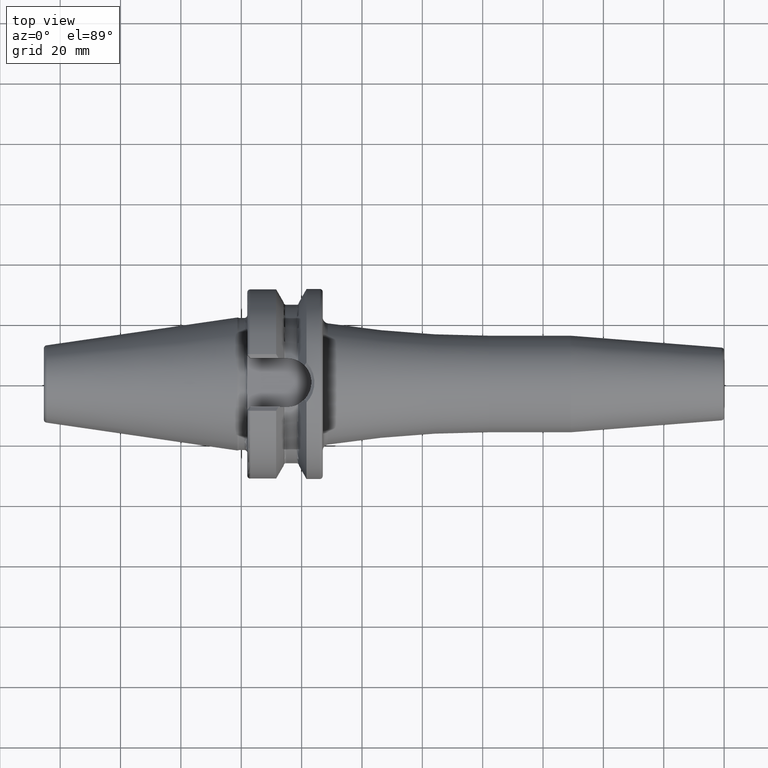
[diagram: clean part render]
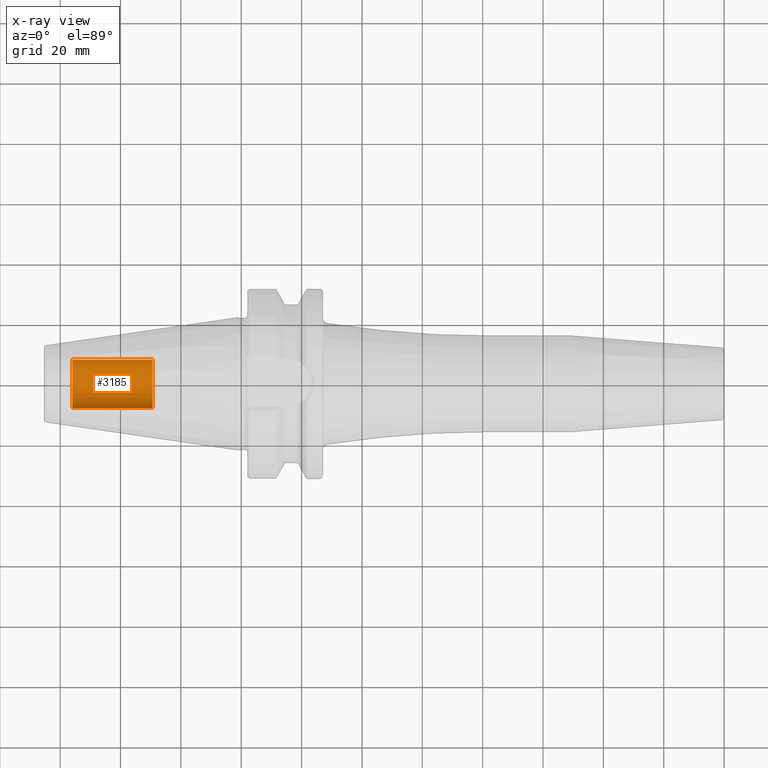
[diagram: x-ray — body ghosted, one internal face saturated and labeled with its STEP entity id]
A machine part, top view, then the same camera in x-ray: the body is ghosted and one INTERNAL B-rep face — a face not visible from any outside direction — is saturated and labeled: STEP entity #3185.
In plain terms, the highlighted cylindrical surface (edge-blend (fillet) strip) has radius 8.0028 mm, axis along (1, 0, 0).
Its self-contained STEP definition (entity closure, byte-faithful):
#3120=CARTESIAN_POINT('',(-5.595E1,0.E0,0.E0));
#3121=DIRECTION('',(-1.E0,0.E0,0.E0));
#3122=DIRECTION('',(0.E0,1.E0,0.E0));
#3123=AXIS2_PLACEMENT_3D('',#3120,#3121,#3122);
#3125=DIRECTION('',(1.E0,0.E0,0.E0));
#3126=VECTOR('',#3125,2.655E1);
#3127=CARTESIAN_POINT('',(-5.595E1,-8.00275E0,0.E0));
#3128=LINE('',#3127,#3126);
#3134=DIRECTION('',(1.E0,0.E0,0.E0));
#3135=VECTOR('',#3134,2.655E1);
#3136=CARTESIAN_POINT('',(-5.595E1,8.00275E0,0.E0));
#3137=LINE('',#3136,#3135);
#3143=CARTESIAN_POINT('',(-2.94E1,0.E0,0.E0));
#3144=DIRECTION('',(1.E0,0.E0,0.E0));
#3145=DIRECTION('',(0.E0,-1.E0,0.E0));
#3146=AXIS2_PLACEMENT_3D('',#3143,#3144,#3145);
#3158=CARTESIAN_POINT('',(-5.595E1,8.00275E0,0.E0));
#3159=CARTESIAN_POINT('',(-5.595E1,-8.00275E0,0.E0));
#3160=VERTEX_POINT('',#3158);
#3161=VERTEX_POINT('',#3159);
#3162=CARTESIAN_POINT('',(-2.94E1,8.00275E0,0.E0));
#3163=CARTESIAN_POINT('',(-2.94E1,-8.00275E0,0.E0));
#3164=VERTEX_POINT('',#3162);
#3165=VERTEX_POINT('',#3163);
#3170=CARTESIAN_POINT('',(-5.595E1,0.E0,0.E0));
#3171=DIRECTION('',(1.E0,0.E0,0.E0));
#3172=DIRECTION('',(0.E0,1.E0,0.E0));
#3173=AXIS2_PLACEMENT_3D('',#3170,#3171,#3172);
#3174=CYLINDRICAL_SURFACE('',#3173,8.00275E0);
#3176=ORIENTED_EDGE('',*,*,#3175,.T.);
#3178=ORIENTED_EDGE('',*,*,#3177,.T.);
#3180=ORIENTED_EDGE('',*,*,#3179,.T.);
#3182=ORIENTED_EDGE('',*,*,#3181,.F.);
#3183=EDGE_LOOP('',(#3176,#3178,#3180,#3182));
#3184=FACE_OUTER_BOUND('',#3183,.F.);
#3185=ADVANCED_FACE('',(#3184),#3174,.T.);
#3124=CIRCLE('',#3123,8.00275E0);
#3147=CIRCLE('',#3146,8.00275E0);
#3175=EDGE_CURVE('',#3160,#3161,#3124,.T.);
#3177=EDGE_CURVE('',#3161,#3165,#3128,.T.);
#3179=EDGE_CURVE('',#3165,#3164,#3147,.T.);
#3181=EDGE_CURVE('',#3160,#3164,#3137,.T.);